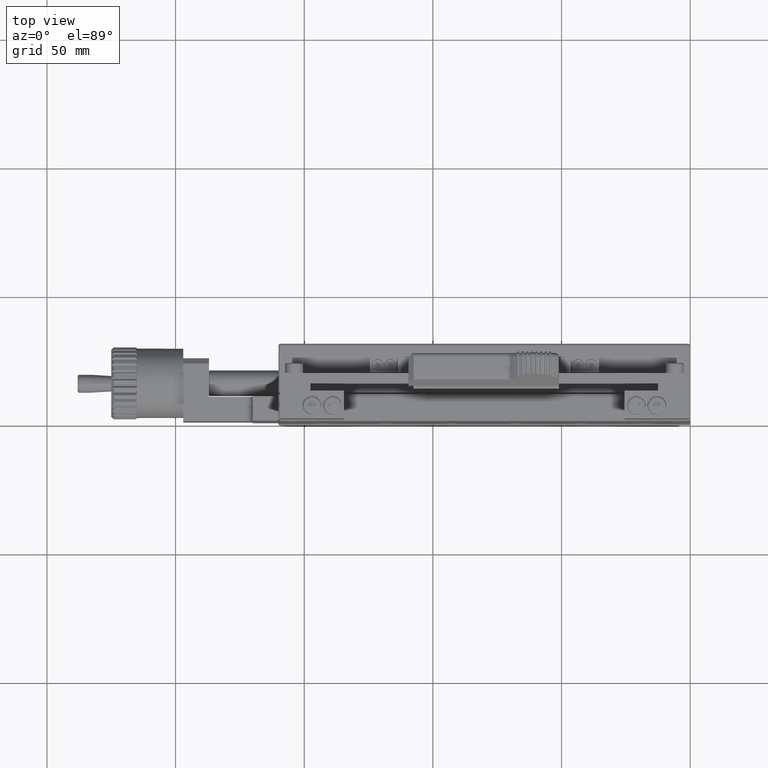
[diagram: clean part render]
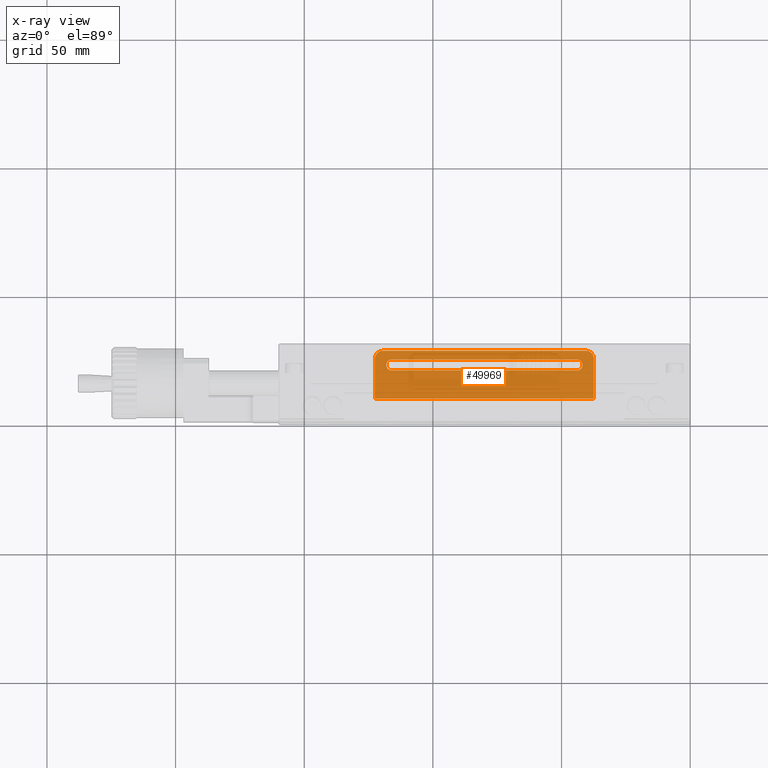
[diagram: x-ray — body ghosted, one internal face saturated and labeled with its STEP entity id]
A machine part, top view, then the same camera in x-ray: the body is ghosted and one INTERNAL B-rep face — a face not visible from any outside direction — is saturated and labeled: STEP entity #49969.
In plain terms, the highlighted planar face has unit normal (0, 0, 1).
Its self-contained STEP definition (entity closure, byte-faithful):
#887 = CARTESIAN_POINT ( 'NONE',  ( -119.5000000000000142, 26.00000000000000355, -50.00000000000000000 ) ) ;
#2067 = ORIENTED_EDGE ( 'NONE', *, *, #16710, .T. ) ;
#3254 = CARTESIAN_POINT ( 'NONE',  ( -122.5000000000000000, 26.00000000000000355, -50.00000000000000000 ) ) ;
#4625 = DIRECTION ( 'NONE',  ( -0.000000000000000000, -0.000000000000000000, -1.000000000000000000 ) ) ;
#5279 = CIRCLE ( 'NONE', #30788, 2.149999999999999023 ) ;
#5804 = CIRCLE ( 'NONE', #6873, 3.000000000000002665 ) ;
#6837 = EDGE_CURVE ( 'NONE', #10645, #7236, #5279, .T. ) ;
#6873 = AXIS2_PLACEMENT_3D ( 'NONE', #33694, #63379, #59691 ) ;
#7236 = VERTEX_POINT ( 'NONE', #54645 ) ;
#7284 = DIRECTION ( 'NONE',  ( 1.000000000000000000, 0.000000000000000000, 0.000000000000000000 ) ) ;
#7819 = AXIS2_PLACEMENT_3D ( 'NONE', #29933, #4625, #65243 ) ;
#8441 = DIRECTION ( 'NONE',  ( 1.000000000000000000, 0.000000000000000000, 0.000000000000000000 ) ) ;
#9474 = DIRECTION ( 'NONE',  ( -0.000000000000000000, 1.000000000000000000, 0.000000000000000000 ) ) ;
#9623 = ORIENTED_EDGE ( 'NONE', *, *, #40505, .T. ) ;
#9838 = CARTESIAN_POINT ( 'NONE',  ( -119.5000000000000142, 25.64999999999999858, -50.00000000000000000 ) ) ;
#10645 = VERTEX_POINT ( 'NONE', #31651 ) ;
#13010 = LINE ( 'NONE', #41765, #60015 ) ;
#13187 = EDGE_CURVE ( 'NONE', #7236, #50490, #64793, .T. ) ;
#13686 = VERTEX_POINT ( 'NONE', #30382 ) ;
#15485 = VECTOR ( 'NONE', #39142, 1000.000000000000000 ) ;
#15515 = DIRECTION ( 'NONE',  ( -1.000000000000000000, -0.000000000000000000, 0.000000000000000000 ) ) ;
#16373 = AXIS2_PLACEMENT_3D ( 'NONE', #28723, #17770, #8441 ) ;
#16526 = PLANE ( 'NONE',  #59371 ) ;
#16710 = EDGE_CURVE ( 'NONE', #29928, #46486, #29082, .T. ) ;
#17770 = DIRECTION ( 'NONE',  ( 0.000000000000000000, 0.000000000000000000, 1.000000000000000000 ) ) ;
#18183 = CARTESIAN_POINT ( 'NONE',  ( -122.5000000000000000, 10.50000000000000000, -50.00000000000000000 ) ) ;
#18455 = EDGE_CURVE ( 'NONE', #46486, #62604, #24208, .T. ) ;
#19234 = EDGE_CURVE ( 'NONE', #44361, #37342, #5804, .T. ) ;
#22881 = EDGE_CURVE ( 'NONE', #50490, #31849, #49262, .T. ) ;
#23793 = EDGE_CURVE ( 'NONE', #31849, #10645, #13010, .T. ) ;
#24208 = LINE ( 'NONE', #3254, #53710 ) ;
#24929 = FACE_BOUND ( 'NONE', #43234, .T. ) ;
#25988 = CARTESIAN_POINT ( 'NONE',  ( -37.49999999999999289, 26.00000000000000355, -50.00000000000000000 ) ) ;
#27237 = CARTESIAN_POINT ( 'NONE',  ( -116.0000000000000000, 23.50000000000000000, -50.00000000000000000 ) ) ;
#28208 = DIRECTION ( 'NONE',  ( -0.000000000000000000, -0.000000000000000000, -1.000000000000000000 ) ) ;
#28243 = ORIENTED_EDGE ( 'NONE', *, *, #13187, .T. ) ;
#28723 = CARTESIAN_POINT ( 'NONE',  ( -119.5000000000000142, 26.00000000000000355, -50.00000000000000000 ) ) ;
#29060 = CARTESIAN_POINT ( 'NONE',  ( -122.5000000000000000, 26.00000000000000355, -50.00000000000000000 ) ) ;
#29082 = CIRCLE ( 'NONE', #16373, 3.000000000000016431 ) ;
#29928 = VERTEX_POINT ( 'NONE', #40098 ) ;
#29933 = CARTESIAN_POINT ( 'NONE',  ( -44.00000000000000000, 23.50000000000000000, -50.00000000000000000 ) ) ;
#30008 = EDGE_CURVE ( 'NONE', #13686, #44361, #31647, .T. ) ;
#30209 = CARTESIAN_POINT ( 'NONE',  ( -44.00000000000000000, 21.35000000000000142, -50.00000000000000000 ) ) ;
#30382 = CARTESIAN_POINT ( 'NONE',  ( -37.50000000000000711, 10.50000000000000000, -50.00000000000000000 ) ) ;
#30788 = AXIS2_PLACEMENT_3D ( 'NONE', #27237, #28208, #7284 ) ;
#31015 = VECTOR ( 'NONE', #65153, 1000.000000000000000 ) ;
#31647 = LINE ( 'NONE', #25988, #33366 ) ;
#31651 = CARTESIAN_POINT ( 'NONE',  ( -116.0000000000000000, 21.35000000000000142, -50.00000000000000000 ) ) ;
#31849 = VERTEX_POINT ( 'NONE', #30209 ) ;
#32848 = ORIENTED_EDGE ( 'NONE', *, *, #22881, .T. ) ;
#33366 = VECTOR ( 'NONE', #9474, 1000.000000000000000 ) ;
#33694 = CARTESIAN_POINT ( 'NONE',  ( -40.50000000000000000, 26.00000000000000355, -50.00000000000000000 ) ) ;
#35140 = LINE ( 'NONE', #40800, #65426 ) ;
#35248 = DIRECTION ( 'NONE',  ( 1.000000000000000000, 0.000000000000000000, -0.000000000000000000 ) ) ;
#37342 = VERTEX_POINT ( 'NONE', #57298 ) ;
#38848 = LINE ( 'NONE', #48858, #31015 ) ;
#39142 = DIRECTION ( 'NONE',  ( 1.000000000000000000, 0.000000000000000000, -0.000000000000000000 ) ) ;
#40098 = CARTESIAN_POINT ( 'NONE',  ( -119.5000000000000142, 29.00000000000000355, -50.00000000000000000 ) ) ;
#40505 = EDGE_CURVE ( 'NONE', #37342, #29928, #38848, .T. ) ;
#40800 = CARTESIAN_POINT ( 'NONE',  ( -160.0000000000000000, 10.50000000000000000, -50.00000000000000000 ) ) ;
#41506 = DIRECTION ( 'NONE',  ( 0.000000000000000000, 0.000000000000000000, 1.000000000000000000 ) ) ;
#41765 = CARTESIAN_POINT ( 'NONE',  ( -119.5000000000000142, 21.35000000000000142, -50.00000000000000000 ) ) ;
#43234 = EDGE_LOOP ( 'NONE', ( #64277, #47091, #28243, #32848 ) ) ;
#44361 = VERTEX_POINT ( 'NONE', #60478 ) ;
#44372 = EDGE_CURVE ( 'NONE', #13686, #62604, #35140, .T. ) ;
#45292 = CARTESIAN_POINT ( 'NONE',  ( -44.00000000000000000, 25.64999999999999858, -50.00000000000000000 ) ) ;
#46486 = VERTEX_POINT ( 'NONE', #29060 ) ;
#46494 = FACE_OUTER_BOUND ( 'NONE', #65359, .T. ) ;
#47014 = ORIENTED_EDGE ( 'NONE', *, *, #30008, .T. ) ;
#47091 = ORIENTED_EDGE ( 'NONE', *, *, #6837, .T. ) ;
#47686 = ORIENTED_EDGE ( 'NONE', *, *, #18455, .T. ) ;
#48858 = CARTESIAN_POINT ( 'NONE',  ( -119.5000000000000142, 29.00000000000000000, -50.00000000000000000 ) ) ;
#49262 = CIRCLE ( 'NONE', #7819, 2.149999999999999023 ) ;
#49969 = ADVANCED_FACE ( 'NONE', ( #46494, #24929 ), #16526, .T. ) ;
#50490 = VERTEX_POINT ( 'NONE', #45292 ) ;
#53710 = VECTOR ( 'NONE', #64184, 1000.000000000000000 ) ;
#53968 = ORIENTED_EDGE ( 'NONE', *, *, #44372, .F. ) ;
#54645 = CARTESIAN_POINT ( 'NONE',  ( -116.0000000000000000, 25.64999999999999858, -50.00000000000000000 ) ) ;
#57298 = CARTESIAN_POINT ( 'NONE',  ( -40.49999999999999289, 29.00000000000000000, -50.00000000000000000 ) ) ;
#59371 = AXIS2_PLACEMENT_3D ( 'NONE', #887, #41506, #35248 ) ;
#59691 = DIRECTION ( 'NONE',  ( 1.000000000000000000, 0.000000000000000000, 0.000000000000000000 ) ) ;
#60015 = VECTOR ( 'NONE', #63632, 1000.000000000000000 ) ;
#60478 = CARTESIAN_POINT ( 'NONE',  ( -37.49999999999999289, 26.00000000000000355, -50.00000000000000000 ) ) ;
#62604 = VERTEX_POINT ( 'NONE', #18183 ) ;
#63379 = DIRECTION ( 'NONE',  ( 0.000000000000000000, 0.000000000000000000, 1.000000000000000000 ) ) ;
#63632 = DIRECTION ( 'NONE',  ( -1.000000000000000000, -0.000000000000000000, 0.000000000000000000 ) ) ;
#64184 = DIRECTION ( 'NONE',  ( 0.000000000000000000, -1.000000000000000000, -0.000000000000000000 ) ) ;
#64277 = ORIENTED_EDGE ( 'NONE', *, *, #23793, .T. ) ;
#64793 = LINE ( 'NONE', #9838, #15485 ) ;
#65004 = ORIENTED_EDGE ( 'NONE', *, *, #19234, .T. ) ;
#65153 = DIRECTION ( 'NONE',  ( -1.000000000000000000, -0.000000000000000000, 0.000000000000000000 ) ) ;
#65243 = DIRECTION ( 'NONE',  ( 1.000000000000000000, 0.000000000000000000, 0.000000000000000000 ) ) ;
#65359 = EDGE_LOOP ( 'NONE', ( #9623, #2067, #47686, #53968, #47014, #65004 ) ) ;
#65426 = VECTOR ( 'NONE', #15515, 1000.000000000000000 ) ;